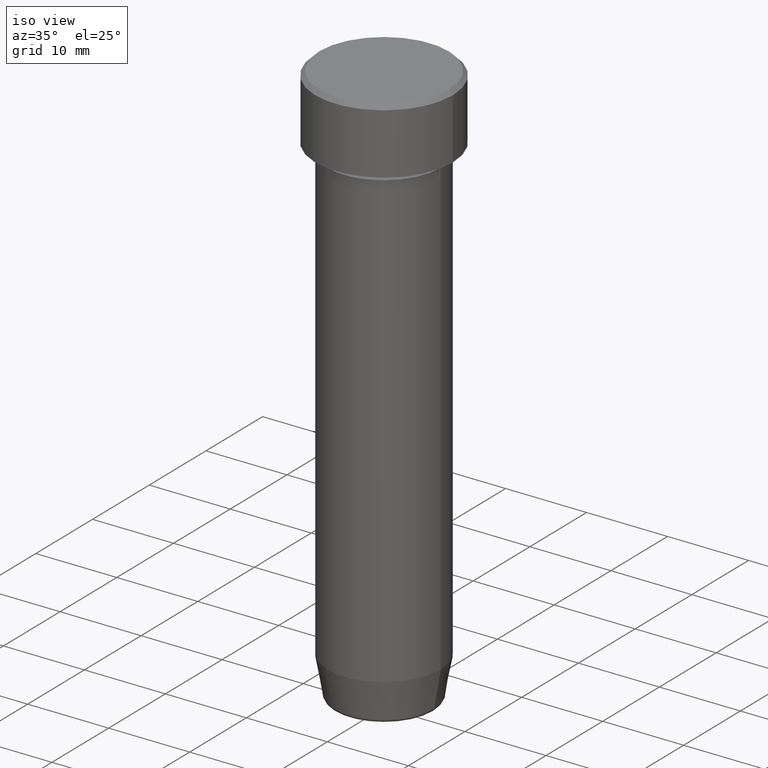
[diagram: clean part render]
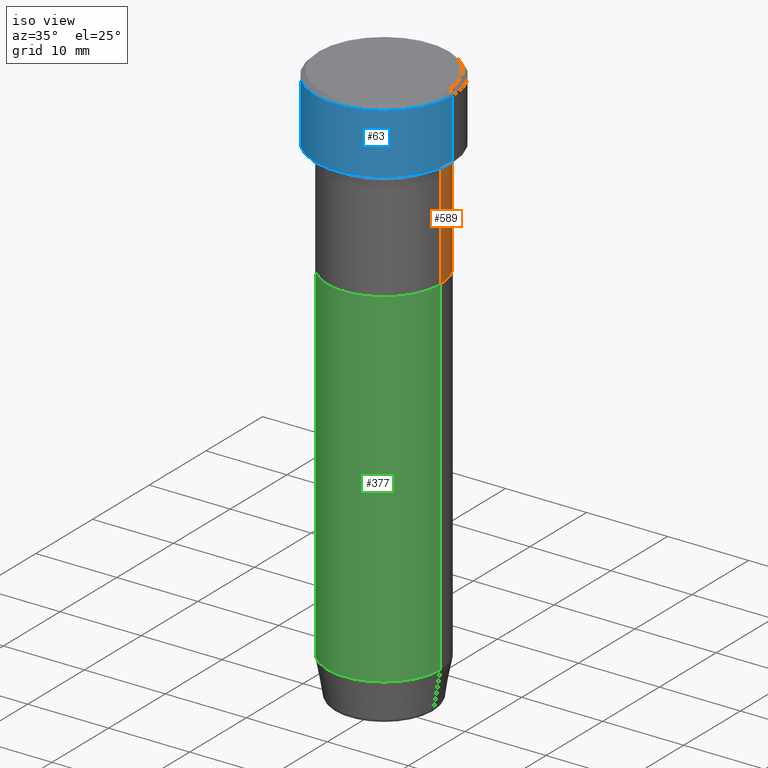
[diagram: same view with three faces highlighted in distinct colors, each labeled with its STEP entity id]
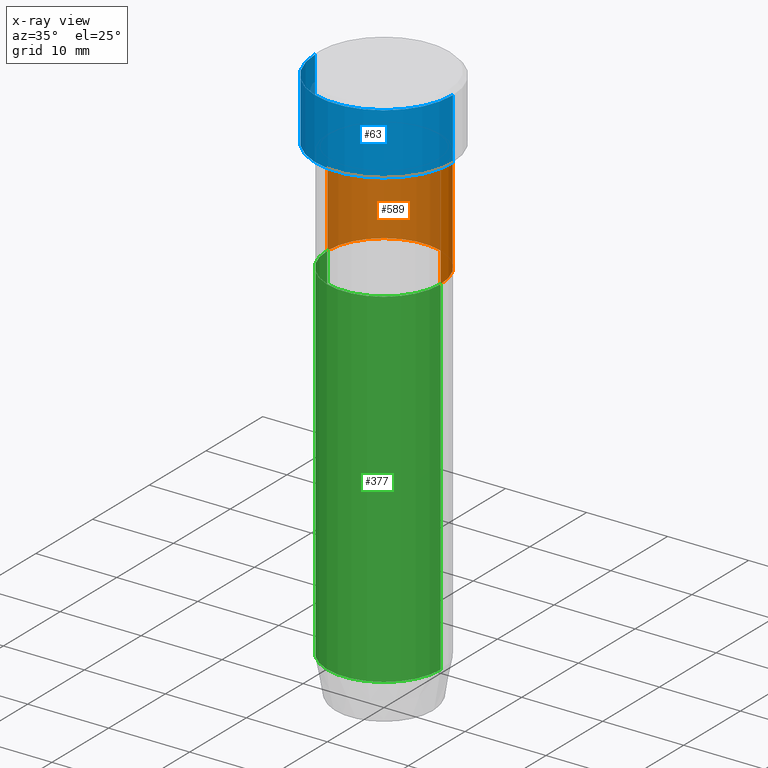
[diagram: x-ray of the same camera — body ghosted, the three highlighted faces saturated]
A machine part, iso view with three faces highlighted in distinct colors.
The next image is the same camera in x-ray (body ghosted, the three faces saturated) — at least one of them is partly hidden behind the body in this view.
Their STEP definitions:

[orange] entity #589 — the highlighted cylindrical surface (partial cylindrical patch) has radius 7 mm, axis along (-0, -0, 1).
#9 = VECTOR ( 'NONE', #131, 1000.000000000000000 ) ;
#26 = ORIENTED_EDGE ( 'NONE', *, *, #226, .F. ) ;
#41 = CARTESIAN_POINT ( 'NONE',  ( 6.999999999999999112, 0.000000000000000000, 0.000000000000000000 ) ) ;
#48 = DIRECTION ( 'NONE',  ( -0.000000000000000000, -0.000000000000000000, 1.000000000000000000 ) ) ;
#49 = EDGE_CURVE ( 'NONE', #400, #385, #439, .T. ) ;
#62 = EDGE_CURVE ( 'NONE', #352, #230, #309, .T. ) ;
#68 = DIRECTION ( 'NONE',  ( 1.000000000000000000, 0.000000000000000000, 0.000000000000000000 ) ) ;
#79 = CARTESIAN_POINT ( 'NONE',  ( -6.999999999999999112, 8.572527594031472204E-16, -22.00000000000000000 ) ) ;
#98 = CARTESIAN_POINT ( 'NONE',  ( 0.000000000000000000, 0.000000000000000000, -9.000000000000001776 ) ) ;
#102 = AXIS2_PLACEMENT_3D ( 'NONE', #98, #143, #428 ) ;
#119 = CARTESIAN_POINT ( 'NONE',  ( -6.999999999999999112, 8.572527594031472204E-16, 0.000000000000000000 ) ) ;
#126 = CARTESIAN_POINT ( 'NONE',  ( 6.999999999999999112, 0.000000000000000000, -22.00000000000000000 ) ) ;
#131 = DIRECTION ( 'NONE',  ( -0.000000000000000000, -0.000000000000000000, 1.000000000000000000 ) ) ;
#132 = CARTESIAN_POINT ( 'NONE',  ( 7.000000000000000000, 0.000000000000000000, -9.000000000000001776 ) ) ;
#143 = DIRECTION ( 'NONE',  ( -0.000000000000000000, -0.000000000000000000, 1.000000000000000000 ) ) ;
#160 = DIRECTION ( 'NONE',  ( -0.000000000000000000, -0.000000000000000000, 1.000000000000000000 ) ) ;
#182 = CIRCLE ( 'NONE', #245, 6.999999999999999112 ) ;
#192 = DIRECTION ( 'NONE',  ( 1.000000000000000000, 0.000000000000000000, 0.000000000000000000 ) ) ;
#226 = EDGE_CURVE ( 'NONE', #385, #230, #517, .T. ) ;
#229 = CARTESIAN_POINT ( 'NONE',  ( 0.000000000000000000, 0.000000000000000000, -22.00000000000000000 ) ) ;
#230 = VERTEX_POINT ( 'NONE', #291 ) ;
#245 = AXIS2_PLACEMENT_3D ( 'NONE', #229, #48, #192 ) ;
#265 = VECTOR ( 'NONE', #304, 1000.000000000000000 ) ;
#291 = CARTESIAN_POINT ( 'NONE',  ( -7.000000000000000888, 8.572527594031474176E-16, -9.000000000000001776 ) ) ;
#296 = ORIENTED_EDGE ( 'NONE', *, *, #472, .T. ) ;
#304 = DIRECTION ( 'NONE',  ( -0.000000000000000000, -0.000000000000000000, 1.000000000000000000 ) ) ;
#309 = LINE ( 'NONE', #119, #9 ) ;
#352 = VERTEX_POINT ( 'NONE', #79 ) ;
#356 = ORIENTED_EDGE ( 'NONE', *, *, #62, .T. ) ;
#374 = AXIS2_PLACEMENT_3D ( 'NONE', #524, #160, #68 ) ;
#385 = VERTEX_POINT ( 'NONE', #132 ) ;
#400 = VERTEX_POINT ( 'NONE', #126 ) ;
#428 = DIRECTION ( 'NONE',  ( 1.000000000000000000, 0.000000000000000000, 0.000000000000000000 ) ) ;
#439 = LINE ( 'NONE', #41, #265 ) ;
#472 = EDGE_CURVE ( 'NONE', #400, #352, #182, .T. ) ;
#493 = ORIENTED_EDGE ( 'NONE', *, *, #49, .F. ) ;
#517 = CIRCLE ( 'NONE', #102, 7.000000000000000000 ) ;
#524 = CARTESIAN_POINT ( 'NONE',  ( 0.000000000000000000, 0.000000000000000000, 0.000000000000000000 ) ) ;
#531 = FACE_OUTER_BOUND ( 'NONE', #546, .T. ) ;
#546 = EDGE_LOOP ( 'NONE', ( #296, #356, #26, #493 ) ) ;
#578 = CYLINDRICAL_SURFACE ( 'NONE', #374, 6.999999999999999112 ) ;
#589 = ADVANCED_FACE ( 'NONE', ( #531 ), #578, .T. ) ;

[blue] entity #63 — the highlighted cylindrical surface (partial cylindrical patch) has radius 8.5 mm, axis along (-0, -0, 1).
#3 = AXIS2_PLACEMENT_3D ( 'NONE', #91, #544, #594 ) ;
#30 = VERTEX_POINT ( 'NONE', #162 ) ;
#35 = CIRCLE ( 'NONE', #552, 8.500000000000000000 ) ;
#57 = EDGE_LOOP ( 'NONE', ( #431, #410, #202, #488 ) ) ;
#63 = ADVANCED_FACE ( 'NONE', ( #557 ), #272, .T. ) ;
#66 = EDGE_CURVE ( 'NONE', #418, #30, #513, .T. ) ;
#91 = CARTESIAN_POINT ( 'NONE',  ( 0.000000000000000000, 0.000000000000000000, -8.000000000000000000 ) ) ;
#162 = CARTESIAN_POINT ( 'NONE',  ( -8.500000000000000000, 1.040949779275250140E-15, -0.4999999999999987232 ) ) ;
#176 = DIRECTION ( 'NONE',  ( -0.000000000000000000, -0.000000000000000000, 1.000000000000000000 ) ) ;
#185 = DIRECTION ( 'NONE',  ( -0.000000000000000000, -0.000000000000000000, 1.000000000000000000 ) ) ;
#199 = VECTOR ( 'NONE', #176, 1000.000000000000000 ) ;
#202 = ORIENTED_EDGE ( 'NONE', *, *, #383, .T. ) ;
#239 = CARTESIAN_POINT ( 'NONE',  ( -8.500000000000000000, 1.040949779275250140E-15, 0.000000000000000000 ) ) ;
#258 = VECTOR ( 'NONE', #384, 1000.000000000000000 ) ;
#272 = CYLINDRICAL_SURFACE ( 'NONE', #416, 8.500000000000000000 ) ;
#286 = DIRECTION ( 'NONE',  ( 1.000000000000000000, 0.000000000000000000, 0.000000000000000000 ) ) ;
#290 = CARTESIAN_POINT ( 'NONE',  ( 8.500000000000000000, 0.000000000000000000, -8.000000000000000000 ) ) ;
#300 = CARTESIAN_POINT ( 'NONE',  ( 8.500000000000000000, 0.000000000000000000, -0.4999999999999987232 ) ) ;
#340 = DIRECTION ( 'NONE',  ( 1.000000000000000000, 0.000000000000000000, 0.000000000000000000 ) ) ;
#382 = DIRECTION ( 'NONE',  ( 0.000000000000000000, 0.000000000000000000, -1.000000000000000000 ) ) ;
#383 = EDGE_CURVE ( 'NONE', #514, #574, #499, .T. ) ;
#384 = DIRECTION ( 'NONE',  ( -0.000000000000000000, -0.000000000000000000, 1.000000000000000000 ) ) ;
#406 = EDGE_CURVE ( 'NONE', #418, #514, #562, .T. ) ;
#410 = ORIENTED_EDGE ( 'NONE', *, *, #406, .T. ) ;
#413 = CARTESIAN_POINT ( 'NONE',  ( -8.500000000000000000, 1.040949779275250140E-15, -8.000000000000000000 ) ) ;
#416 = AXIS2_PLACEMENT_3D ( 'NONE', #458, #185, #286 ) ;
#418 = VERTEX_POINT ( 'NONE', #413 ) ;
#431 = ORIENTED_EDGE ( 'NONE', *, *, #66, .F. ) ;
#450 = CARTESIAN_POINT ( 'NONE',  ( 8.500000000000000000, 0.000000000000000000, 0.000000000000000000 ) ) ;
#458 = CARTESIAN_POINT ( 'NONE',  ( 0.000000000000000000, 0.000000000000000000, 0.000000000000000000 ) ) ;
#486 = EDGE_CURVE ( 'NONE', #574, #30, #35, .T. ) ;
#488 = ORIENTED_EDGE ( 'NONE', *, *, #486, .T. ) ;
#499 = LINE ( 'NONE', #450, #199 ) ;
#513 = LINE ( 'NONE', #239, #258 ) ;
#514 = VERTEX_POINT ( 'NONE', #290 ) ;
#521 = CARTESIAN_POINT ( 'NONE',  ( 0.000000000000000000, 0.000000000000000000, -0.4999999999999987232 ) ) ;
#544 = DIRECTION ( 'NONE',  ( -0.000000000000000000, -0.000000000000000000, 1.000000000000000000 ) ) ;
#552 = AXIS2_PLACEMENT_3D ( 'NONE', #521, #382, #340 ) ;
#557 = FACE_OUTER_BOUND ( 'NONE', #57, .T. ) ;
#562 = CIRCLE ( 'NONE', #3, 8.500000000000000000 ) ;
#574 = VERTEX_POINT ( 'NONE', #300 ) ;
#594 = DIRECTION ( 'NONE',  ( 1.000000000000000000, 0.000000000000000000, 0.000000000000000000 ) ) ;

[green] entity #377 — the highlighted cylindrical surface (partial cylindrical patch) has radius 7 mm, axis along (-0, -0, 1).
#14 = CARTESIAN_POINT ( 'NONE',  ( 6.999999999999999112, 0.000000000000000000, -22.00000000000000000 ) ) ;
#15 = CARTESIAN_POINT ( 'NONE',  ( -6.999999999999999112, 8.572527594031472204E-16, -65.00000000000000000 ) ) ;
#38 = EDGE_CURVE ( 'NONE', #408, #77, #525, .T. ) ;
#77 = VERTEX_POINT ( 'NONE', #14 ) ;
#87 = FACE_OUTER_BOUND ( 'NONE', #520, .T. ) ;
#114 = ORIENTED_EDGE ( 'NONE', *, *, #38, .F. ) ;
#116 = AXIS2_PLACEMENT_3D ( 'NONE', #456, #541, #118 ) ;
#118 = DIRECTION ( 'NONE',  ( 1.000000000000000000, 0.000000000000000000, 0.000000000000000000 ) ) ;
#123 = CARTESIAN_POINT ( 'NONE',  ( -6.999999999999999112, 8.572527594031472204E-16, -22.00000000000000000 ) ) ;
#135 = CARTESIAN_POINT ( 'NONE',  ( -6.999999999999999112, 8.572527594031472204E-16, 0.000000000000000000 ) ) ;
#148 = AXIS2_PLACEMENT_3D ( 'NONE', #225, #598, #319 ) ;
#183 = EDGE_CURVE ( 'NONE', #475, #408, #426, .T. ) ;
#189 = CARTESIAN_POINT ( 'NONE',  ( 6.999999999999999112, 0.000000000000000000, -65.00000000000000000 ) ) ;
#190 = DIRECTION ( 'NONE',  ( -0.000000000000000000, -0.000000000000000000, 1.000000000000000000 ) ) ;
#224 = EDGE_CURVE ( 'NONE', #526, #77, #511, .T. ) ;
#225 = CARTESIAN_POINT ( 'NONE',  ( 0.000000000000000000, 0.000000000000000000, 0.000000000000000000 ) ) ;
#238 = DIRECTION ( 'NONE',  ( -0.000000000000000000, -0.000000000000000000, 1.000000000000000000 ) ) ;
#240 = ORIENTED_EDGE ( 'NONE', *, *, #183, .F. ) ;
#271 = CYLINDRICAL_SURFACE ( 'NONE', #148, 6.999999999999999112 ) ;
#302 = ORIENTED_EDGE ( 'NONE', *, *, #468, .T. ) ;
#319 = DIRECTION ( 'NONE',  ( 1.000000000000000000, 0.000000000000000000, 0.000000000000000000 ) ) ;
#345 = DIRECTION ( 'NONE',  ( -0.000000000000000000, -0.000000000000000000, 1.000000000000000000 ) ) ;
#372 = VECTOR ( 'NONE', #190, 1000.000000000000000 ) ;
#377 = ADVANCED_FACE ( 'NONE', ( #87 ), #271, .T. ) ;
#408 = VERTEX_POINT ( 'NONE', #123 ) ;
#426 = LINE ( 'NONE', #135, #580 ) ;
#430 = CIRCLE ( 'NONE', #582, 6.999999999999999112 ) ;
#456 = CARTESIAN_POINT ( 'NONE',  ( 0.000000000000000000, 0.000000000000000000, -22.00000000000000000 ) ) ;
#464 = CARTESIAN_POINT ( 'NONE',  ( 0.000000000000000000, 0.000000000000000000, -65.00000000000000000 ) ) ;
#468 = EDGE_CURVE ( 'NONE', #475, #526, #430, .T. ) ;
#475 = VERTEX_POINT ( 'NONE', #15 ) ;
#511 = LINE ( 'NONE', #523, #372 ) ;
#515 = DIRECTION ( 'NONE',  ( 1.000000000000000000, 0.000000000000000000, 0.000000000000000000 ) ) ;
#520 = EDGE_LOOP ( 'NONE', ( #240, #302, #591, #114 ) ) ;
#523 = CARTESIAN_POINT ( 'NONE',  ( 6.999999999999999112, 0.000000000000000000, 0.000000000000000000 ) ) ;
#525 = CIRCLE ( 'NONE', #116, 6.999999999999999112 ) ;
#526 = VERTEX_POINT ( 'NONE', #189 ) ;
#541 = DIRECTION ( 'NONE',  ( -0.000000000000000000, -0.000000000000000000, 1.000000000000000000 ) ) ;
#580 = VECTOR ( 'NONE', #345, 1000.000000000000000 ) ;
#582 = AXIS2_PLACEMENT_3D ( 'NONE', #464, #238, #515 ) ;
#591 = ORIENTED_EDGE ( 'NONE', *, *, #224, .T. ) ;
#598 = DIRECTION ( 'NONE',  ( -0.000000000000000000, -0.000000000000000000, 1.000000000000000000 ) ) ;